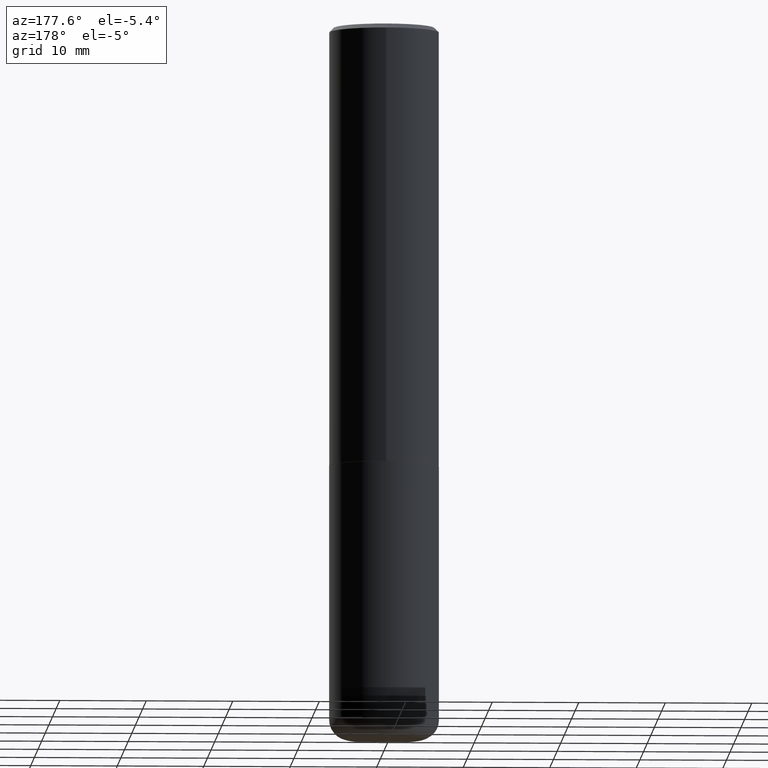
[diagram: clean part render]
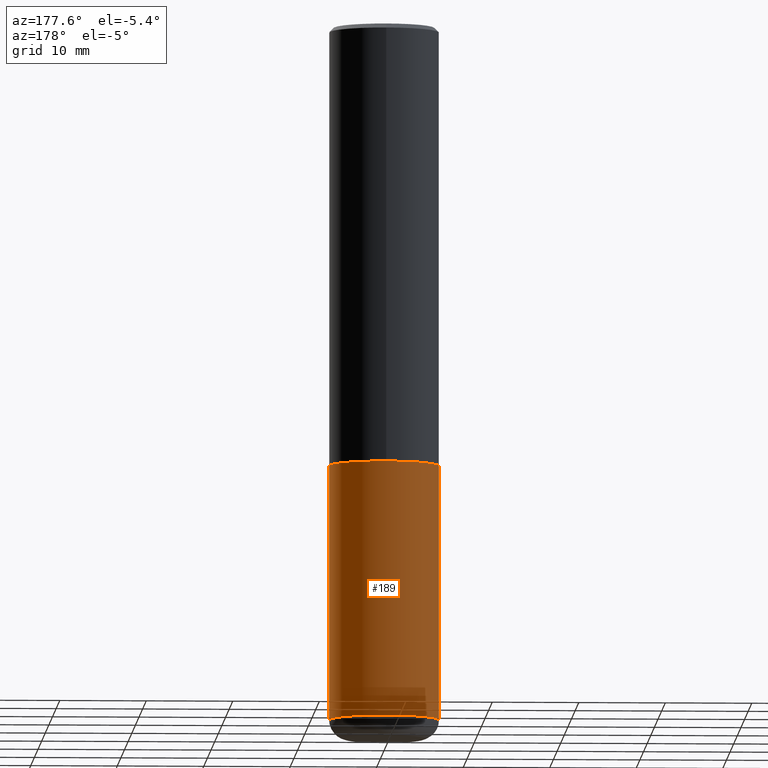
[diagram: same view with one face highlighted and labeled with its STEP entity id]
A machine part, auxiliary view. The second image highlights one B-rep face of the part: STEP entity #189.
In plain terms, the highlighted cylindrical surface (partial cylindrical patch) has radius 6.35 mm, axis along (-0, 0, 1).
Its self-contained STEP definition (entity closure, byte-faithful):
#17 = VERTEX_POINT ( 'NONE', #288 ) ;
#62 = ORIENTED_EDGE ( 'NONE', *, *, #276, .F. ) ;
#79 = CARTESIAN_POINT ( 'NONE',  ( -0.2500000000000000000, 1.776356839400250465E-15, -1.229733772563726445E-29 ) ) ;
#104 = CARTESIAN_POINT ( 'NONE',  ( 0.2499999999999998612, -1.277882170016590626E-14, -3.160000000000000142 ) ) ;
#110 = CIRCLE ( 'NONE', #193, 0.2500000000000000555 ) ;
#112 = LINE ( 'NONE', #167, #302 ) ;
#128 = CYLINDRICAL_SURFACE ( 'NONE', #297, 0.2500000000000000000 ) ;
#144 = VERTEX_POINT ( 'NONE', #389 ) ;
#151 = VERTEX_POINT ( 'NONE', #104 ) ;
#166 = CARTESIAN_POINT ( 'NONE',  ( 0.2500000000000000000, -8.728703347107857054E-15, -2.000000000000000000 ) ) ;
#167 = CARTESIAN_POINT ( 'NONE',  ( 0.2500000000000000000, -1.745740669421566678E-15, 1.219044193948983948E-29 ) ) ;
#169 = FACE_OUTER_BOUND ( 'NONE', #187, .T. ) ;
#171 = CARTESIAN_POINT ( 'NONE',  ( 7.727681427545032274E-29, -1.103308103074433958E-14, -3.160000000000000142 ) ) ;
#187 = EDGE_LOOP ( 'NONE', ( #340, #409, #62, #403 ) ) ;
#189 = ADVANCED_FACE ( 'NONE', ( #169 ), #128, .T. ) ;
#193 = AXIS2_PLACEMENT_3D ( 'NONE', #171, #270, #296 ) ;
#202 = DIRECTION ( 'NONE',  ( -2.445468806185136597E-29, 3.491481338843145583E-15, 1.000000000000000000 ) ) ;
#227 = AXIS2_PLACEMENT_3D ( 'NONE', #323, #417, #228 ) ;
#228 = DIRECTION ( 'NONE',  ( 1.000000000000000000, -6.982962677686266711E-15, 0.000000000000000000 ) ) ;
#230 = DIRECTION ( 'NONE',  ( -2.445468806185136877E-29, 3.491481338843145188E-15, 1.000000000000000000 ) ) ;
#237 = DIRECTION ( 'NONE',  ( -2.445468806185136877E-29, 3.491481338843145188E-15, 1.000000000000000000 ) ) ;
#251 = CIRCLE ( 'NONE', #227, 0.2500000000000000000 ) ;
#257 = EDGE_CURVE ( 'NONE', #17, #144, #326, .T. ) ;
#265 = EDGE_CURVE ( 'NONE', #151, #380, #112, .T. ) ;
#270 = DIRECTION ( 'NONE',  ( -2.445468806185136597E-29, 3.491481338843145583E-15, 1.000000000000000000 ) ) ;
#276 = EDGE_CURVE ( 'NONE', #380, #144, #251, .T. ) ;
#288 = CARTESIAN_POINT ( 'NONE',  ( -0.2499999999999998612, -9.256724191344090697E-15, -3.160000000000000142 ) ) ;
#296 = DIRECTION ( 'NONE',  ( 1.000000000000000000, -6.982962677686269077E-15, 0.000000000000000000 ) ) ;
#297 = AXIS2_PLACEMENT_3D ( 'NONE', #390, #202, #388 ) ;
#302 = VECTOR ( 'NONE', #237, 39.37007874015748143 ) ;
#323 = CARTESIAN_POINT ( 'NONE',  ( 4.890937612370273194E-29, -6.982962677686291165E-15, -2.000000000000000000 ) ) ;
#326 = LINE ( 'NONE', #79, #401 ) ;
#340 = ORIENTED_EDGE ( 'NONE', *, *, #416, .T. ) ;
#380 = VERTEX_POINT ( 'NONE', #166 ) ;
#388 = DIRECTION ( 'NONE',  ( 1.000000000000000000, -6.982962677686266711E-15, 4.876176775795935793E-29 ) ) ;
#389 = CARTESIAN_POINT ( 'NONE',  ( -0.2500000000000000000, -7.231665014815064515E-15, -2.000000000000000000 ) ) ;
#390 = CARTESIAN_POINT ( 'NONE',  ( 0.000000000000000000, 0.000000000000000000, 0.000000000000000000 ) ) ;
#401 = VECTOR ( 'NONE', #230, 39.37007874015748143 ) ;
#403 = ORIENTED_EDGE ( 'NONE', *, *, #265, .F. ) ;
#409 = ORIENTED_EDGE ( 'NONE', *, *, #257, .T. ) ;
#416 = EDGE_CURVE ( 'NONE', #151, #17, #110, .T. ) ;
#417 = DIRECTION ( 'NONE',  ( -2.445468806185136597E-29, 3.491481338843145583E-15, 1.000000000000000000 ) ) ;